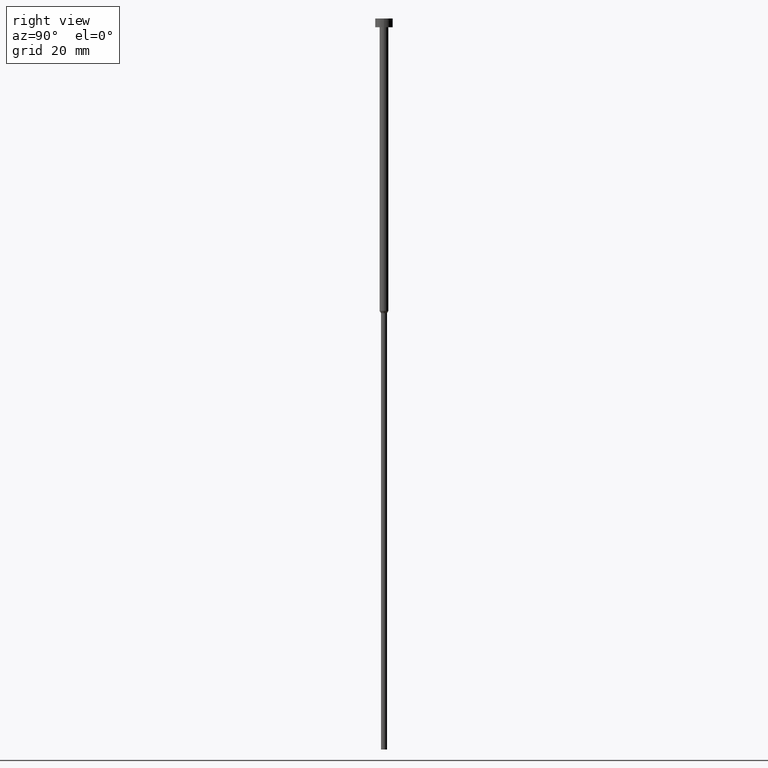
[diagram: clean part render]
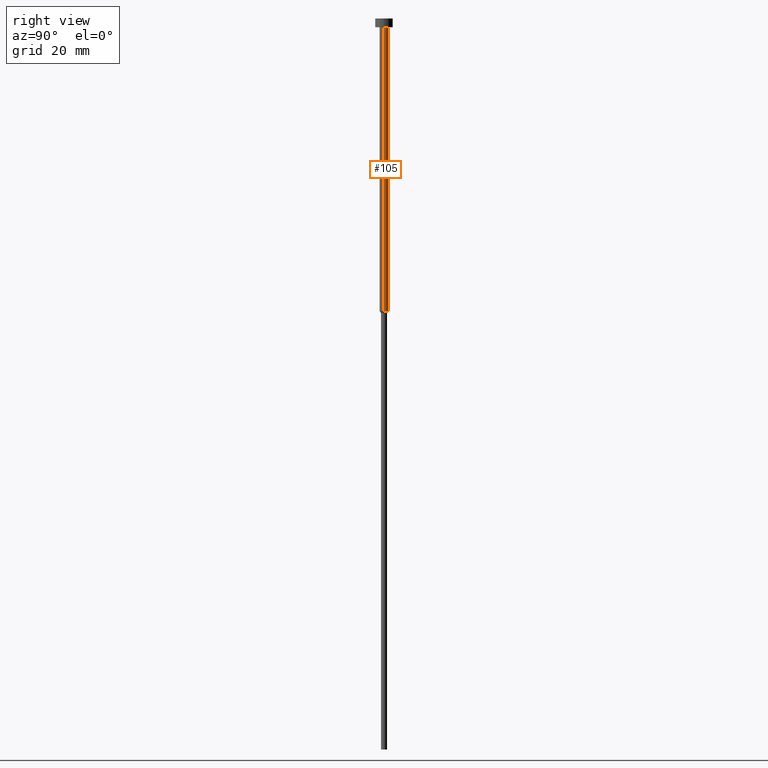
[diagram: same view with one face highlighted and labeled with its STEP entity id]
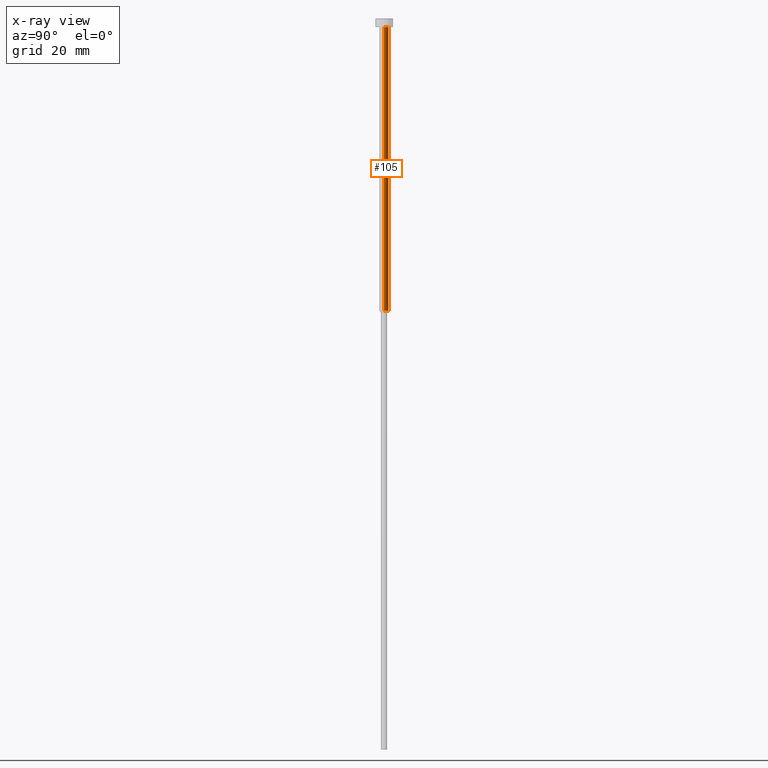
[diagram: x-ray of the same camera — body ghosted, the highlighted face saturated]
A machine part, right view. The second image highlights one B-rep face of the part: STEP entity #105.
The next image is the same camera in x-ray: the body ghosted, the highlighted face saturated — about 0% of this face is hidden behind the body in this view.
In plain terms, the highlighted cylindrical surface (edge-blend (fillet) strip) has radius 1.5 mm, axis along (-0, -0, 1).
Its self-contained STEP definition (entity closure, byte-faithful):
#1 = ORIENTED_EDGE ( 'NONE', *, *, #197, .F. ) ;
#4 = ORIENTED_EDGE ( 'NONE', *, *, #345, .T. ) ;
#6 = EDGE_CURVE ( 'NONE', #352, #64, #143, .T. ) ;
#8 = DIRECTION ( 'NONE',  ( -0.000000000000000000, -0.000000000000000000, 1.000000000000000000 ) ) ;
#14 = VERTEX_POINT ( 'NONE', #302 ) ;
#32 = EDGE_LOOP ( 'NONE', ( #4, #195, #333, #1 ) ) ;
#42 = DIRECTION ( 'NONE',  ( 1.000000000000000000, 0.000000000000000000, 0.000000000000000000 ) ) ;
#48 = CARTESIAN_POINT ( 'NONE',  ( 0.000000000000000000, 0.000000000000000000, -100.0000000000000000 ) ) ;
#50 = AXIS2_PLACEMENT_3D ( 'NONE', #48, #235, #101 ) ;
#57 = VERTEX_POINT ( 'NONE', #175 ) ;
#64 = VERTEX_POINT ( 'NONE', #93 ) ;
#90 = DIRECTION ( 'NONE',  ( -0.000000000000000000, -0.000000000000000000, 1.000000000000000000 ) ) ;
#91 = VECTOR ( 'NONE', #348, 1000.000000000000000 ) ;
#93 = CARTESIAN_POINT ( 'NONE',  ( -1.500000000000000000, 1.836970198721029934E-16, -3.000000000000000888 ) ) ;
#96 = DIRECTION ( 'NONE',  ( -0.000000000000000000, -0.000000000000000000, 1.000000000000000000 ) ) ;
#101 = DIRECTION ( 'NONE',  ( 1.000000000000000000, 0.000000000000000000, 0.000000000000000000 ) ) ;
#105 = ADVANCED_FACE ( 'NONE', ( #229 ), #310, .T. ) ;
#143 = LINE ( 'NONE', #334, #247 ) ;
#148 = CARTESIAN_POINT ( 'NONE',  ( 1.500000000000000000, 0.000000000000000000, 0.000000000000000000 ) ) ;
#150 = EDGE_CURVE ( 'NONE', #57, #64, #254, .T. ) ;
#170 = AXIS2_PLACEMENT_3D ( 'NONE', #227, #96, #203 ) ;
#175 = CARTESIAN_POINT ( 'NONE',  ( 1.500000000000000000, 0.000000000000000000, -3.000000000000000888 ) ) ;
#176 = AXIS2_PLACEMENT_3D ( 'NONE', #201, #8, #42 ) ;
#195 = ORIENTED_EDGE ( 'NONE', *, *, #6, .T. ) ;
#197 = EDGE_CURVE ( 'NONE', #14, #57, #287, .T. ) ;
#201 = CARTESIAN_POINT ( 'NONE',  ( 0.000000000000000000, 0.000000000000000000, -3.000000000000000888 ) ) ;
#203 = DIRECTION ( 'NONE',  ( 1.000000000000000000, 0.000000000000000000, 0.000000000000000000 ) ) ;
#227 = CARTESIAN_POINT ( 'NONE',  ( 0.000000000000000000, 0.000000000000000000, 0.000000000000000000 ) ) ;
#229 = FACE_OUTER_BOUND ( 'NONE', #32, .T. ) ;
#235 = DIRECTION ( 'NONE',  ( -0.000000000000000000, -0.000000000000000000, 1.000000000000000000 ) ) ;
#237 = CIRCLE ( 'NONE', #50, 1.500000000000000000 ) ;
#247 = VECTOR ( 'NONE', #90, 1000.000000000000000 ) ;
#254 = CIRCLE ( 'NONE', #176, 1.500000000000000000 ) ;
#287 = LINE ( 'NONE', #148, #91 ) ;
#302 = CARTESIAN_POINT ( 'NONE',  ( 1.500000000000000000, 0.000000000000000000, -100.0000000000000000 ) ) ;
#310 = CYLINDRICAL_SURFACE ( 'NONE', #170, 1.500000000000000000 ) ;
#333 = ORIENTED_EDGE ( 'NONE', *, *, #150, .F. ) ;
#334 = CARTESIAN_POINT ( 'NONE',  ( -1.500000000000000000, 1.836970198721029934E-16, 0.000000000000000000 ) ) ;
#345 = EDGE_CURVE ( 'NONE', #14, #352, #237, .T. ) ;
#346 = CARTESIAN_POINT ( 'NONE',  ( -1.500000000000000000, 1.836970198721029934E-16, -100.0000000000000000 ) ) ;
#348 = DIRECTION ( 'NONE',  ( -0.000000000000000000, -0.000000000000000000, 1.000000000000000000 ) ) ;
#352 = VERTEX_POINT ( 'NONE', #346 ) ;